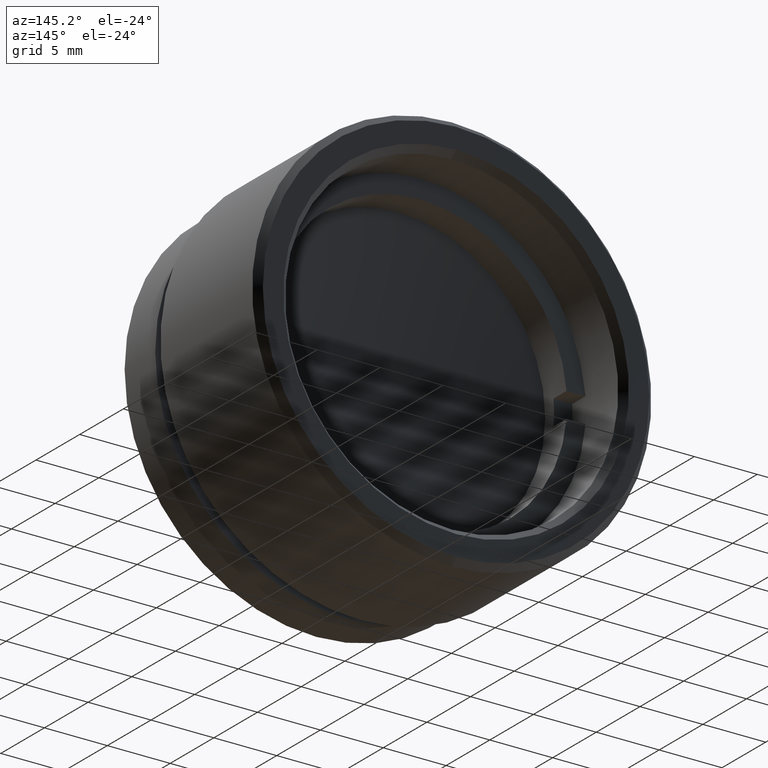
[diagram: clean part render]
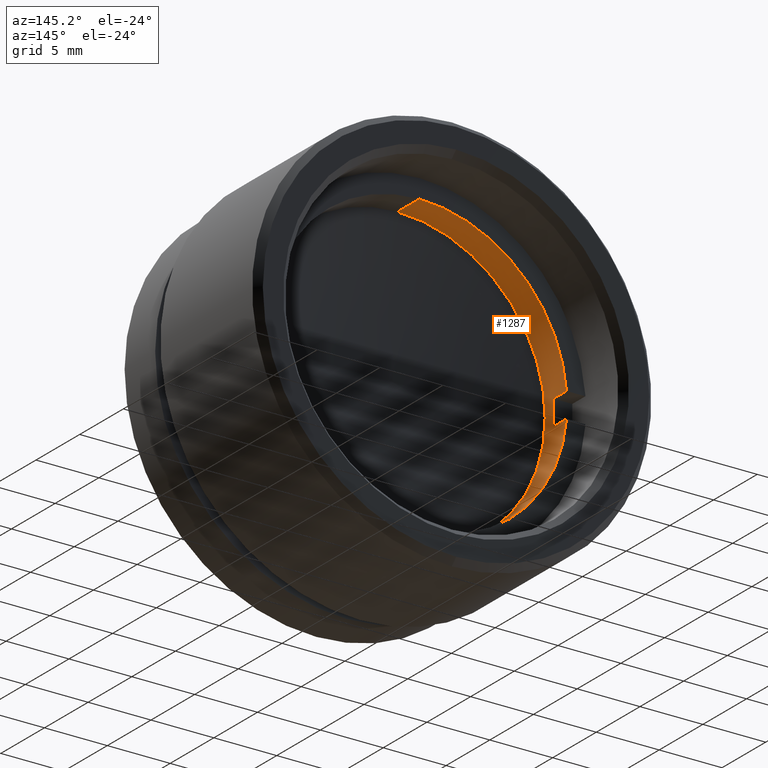
[diagram: same view with one face highlighted and labeled with its STEP entity id]
A machine part, auxiliary view. The second image highlights one B-rep face of the part: STEP entity #1287.
In plain terms, the highlighted cylindrical surface (partial cylindrical patch) has radius 11.75 mm, axis along (0, 1, 0).
Its self-contained STEP definition (entity closure, byte-faithful):
#16 = DIRECTION ( 'NONE',  ( 0.000000000000000000, 1.000000000000000000, 0.000000000000000000 ) ) ;
#21 = CARTESIAN_POINT ( 'NONE',  ( -74.67592806786720416, 16.44655128965290203, 20.92647029529263492 ) ) ;
#25 = DIRECTION ( 'NONE',  ( 0.000000000000000000, -1.000000000000000000, 0.000000000000000000 ) ) ;
#30 = EDGE_CURVE ( 'NONE', #443, #1045, #230, .T. ) ;
#48 = DIRECTION ( 'NONE',  ( 0.000000000000000000, 1.000000000000000000, 0.000000000000000000 ) ) ;
#95 = VERTEX_POINT ( 'NONE', #21 ) ;
#139 = EDGE_CURVE ( 'NONE', #246, #95, #1494, .T. ) ;
#146 = CARTESIAN_POINT ( 'NONE',  ( -62.96855859389910393, 14.94655128965290558, 19.92647029529263492 ) ) ;
#206 = CIRCLE ( 'NONE', #791, 11.75000000000000000 ) ;
#230 = LINE ( 'NONE', #908, #1353 ) ;
#236 = DIRECTION ( 'NONE',  ( 0.000000000000000000, 0.000000000000000000, 1.000000000000000000 ) ) ;
#246 = VERTEX_POINT ( 'NONE', #647 ) ;
#262 = FACE_OUTER_BOUND ( 'NONE', #1366, .T. ) ;
#276 = VERTEX_POINT ( 'NONE', #343 ) ;
#286 = DIRECTION ( 'NONE',  ( 0.000000000000000000, 1.000000000000000000, 0.000000000000000000 ) ) ;
#341 = CARTESIAN_POINT ( 'NONE',  ( -62.96855859389910393, 74.67164370384593042, 19.92647029529263492 ) ) ;
#343 = CARTESIAN_POINT ( 'NONE',  ( -74.67592806786720416, 16.44655128965290203, 18.92647029529263492 ) ) ;
#389 = DIRECTION ( 'NONE',  ( 0.000000000000000000, -1.000000000000000000, 0.000000000000000000 ) ) ;
#395 = DIRECTION ( 'NONE',  ( 0.000000000000000000, 0.000000000000000000, 1.000000000000000000 ) ) ;
#397 = ORIENTED_EDGE ( 'NONE', *, *, #454, .F. ) ;
#408 = DIRECTION ( 'NONE',  ( 0.000000000000000000, 0.000000000000000000, 1.000000000000000000 ) ) ;
#422 = DIRECTION ( 'NONE',  ( 0.000000000000000000, 0.000000000000000000, 1.000000000000000000 ) ) ;
#430 = EDGE_CURVE ( 'NONE', #276, #1252, #539, .T. ) ;
#443 = VERTEX_POINT ( 'NONE', #1084 ) ;
#454 = EDGE_CURVE ( 'NONE', #443, #992, #206, .T. ) ;
#502 = ORIENTED_EDGE ( 'NONE', *, *, #731, .F. ) ;
#521 = ORIENTED_EDGE ( 'NONE', *, *, #822, .T. ) ;
#539 = LINE ( 'NONE', #1444, #668 ) ;
#550 = ORIENTED_EDGE ( 'NONE', *, *, #430, .T. ) ;
#554 = LINE ( 'NONE', #1459, #795 ) ;
#573 = CARTESIAN_POINT ( 'NONE',  ( -62.96855859389910393, 16.44655128965290203, 31.67647029529263492 ) ) ;
#588 = CIRCLE ( 'NONE', #858, 11.75000000000000000 ) ;
#610 = CYLINDRICAL_SURFACE ( 'NONE', #664, 11.75000000000000000 ) ;
#614 = EDGE_CURVE ( 'NONE', #1045, #276, #1408, .T. ) ;
#647 = CARTESIAN_POINT ( 'NONE',  ( -74.67592806786720416, 14.94655128965290558, 20.92647029529263492 ) ) ;
#652 = CARTESIAN_POINT ( 'NONE',  ( -62.96855859389910393, 16.44655128965290203, 19.92647029529263492 ) ) ;
#664 = AXIS2_PLACEMENT_3D ( 'NONE', #341, #16, #236 ) ;
#668 = VECTOR ( 'NONE', #389, 1000.000000000000000 ) ;
#731 = EDGE_CURVE ( 'NONE', #992, #1228, #554, .T. ) ;
#746 = DIRECTION ( 'NONE',  ( 0.000000000000000000, 1.000000000000000000, 0.000000000000000000 ) ) ;
#791 = AXIS2_PLACEMENT_3D ( 'NONE', #800, #746, #422 ) ;
#792 = DIRECTION ( 'NONE',  ( 0.000000000000000000, 1.000000000000000000, 0.000000000000000000 ) ) ;
#795 = VECTOR ( 'NONE', #1031, 1000.000000000000000 ) ;
#800 = CARTESIAN_POINT ( 'NONE',  ( -62.96855859389910393, 13.94655128965290736, 19.92647029529263492 ) ) ;
#810 = ORIENTED_EDGE ( 'NONE', *, *, #614, .T. ) ;
#822 = EDGE_CURVE ( 'NONE', #95, #1228, #1400, .T. ) ;
#851 = ORIENTED_EDGE ( 'NONE', *, *, #139, .T. ) ;
#858 = AXIS2_PLACEMENT_3D ( 'NONE', #146, #25, #961 ) ;
#861 = ORIENTED_EDGE ( 'NONE', *, *, #30, .T. ) ;
#865 = VECTOR ( 'NONE', #792, 1000.000000000000000 ) ;
#908 = CARTESIAN_POINT ( 'NONE',  ( -62.96855859389910393, 74.67164370384593042, 8.176470295292634916 ) ) ;
#920 = CARTESIAN_POINT ( 'NONE',  ( -62.96855859389910393, 13.94655128965290736, 31.67647029529263492 ) ) ;
#936 = AXIS2_PLACEMENT_3D ( 'NONE', #652, #286, #408 ) ;
#961 = DIRECTION ( 'NONE',  ( 0.000000000000000000, 0.000000000000000000, 1.000000000000000000 ) ) ;
#992 = VERTEX_POINT ( 'NONE', #920 ) ;
#1031 = DIRECTION ( 'NONE',  ( 0.000000000000000000, 1.000000000000000000, 0.000000000000000000 ) ) ;
#1045 = VERTEX_POINT ( 'NONE', #1469 ) ;
#1084 = CARTESIAN_POINT ( 'NONE',  ( -62.96855859389910393, 13.94655128965290736, 8.176470295292634916 ) ) ;
#1088 = CARTESIAN_POINT ( 'NONE',  ( -62.96855859389910393, 16.44655128965290203, 19.92647029529263492 ) ) ;
#1095 = AXIS2_PLACEMENT_3D ( 'NONE', #1088, #48, #395 ) ;
#1105 = EDGE_CURVE ( 'NONE', #246, #1252, #588, .T. ) ;
#1228 = VERTEX_POINT ( 'NONE', #573 ) ;
#1252 = VERTEX_POINT ( 'NONE', #1279 ) ;
#1275 = ORIENTED_EDGE ( 'NONE', *, *, #1105, .F. ) ;
#1279 = CARTESIAN_POINT ( 'NONE',  ( -74.67592806786720416, 14.94655128965290558, 18.92647029529263492 ) ) ;
#1287 = ADVANCED_FACE ( 'NONE', ( #262 ), #610, .F. ) ;
#1353 = VECTOR ( 'NONE', #1487, 1000.000000000000000 ) ;
#1366 = EDGE_LOOP ( 'NONE', ( #397, #861, #810, #550, #1275, #851, #521, #502 ) ) ;
#1400 = CIRCLE ( 'NONE', #936, 11.75000000000000000 ) ;
#1408 = CIRCLE ( 'NONE', #1095, 11.75000000000000000 ) ;
#1444 = CARTESIAN_POINT ( 'NONE',  ( -74.67592806786720416, 74.67164370384593042, 18.92647029529263492 ) ) ;
#1459 = CARTESIAN_POINT ( 'NONE',  ( -62.96855859389910393, 74.67164370384593042, 31.67647029529263492 ) ) ;
#1469 = CARTESIAN_POINT ( 'NONE',  ( -62.96855859389910393, 16.44655128965290203, 8.176470295292634916 ) ) ;
#1484 = CARTESIAN_POINT ( 'NONE',  ( -74.67592806786720416, 74.67164370384593042, 20.92647029529263492 ) ) ;
#1487 = DIRECTION ( 'NONE',  ( 0.000000000000000000, 1.000000000000000000, 0.000000000000000000 ) ) ;
#1494 = LINE ( 'NONE', #1484, #865 ) ;